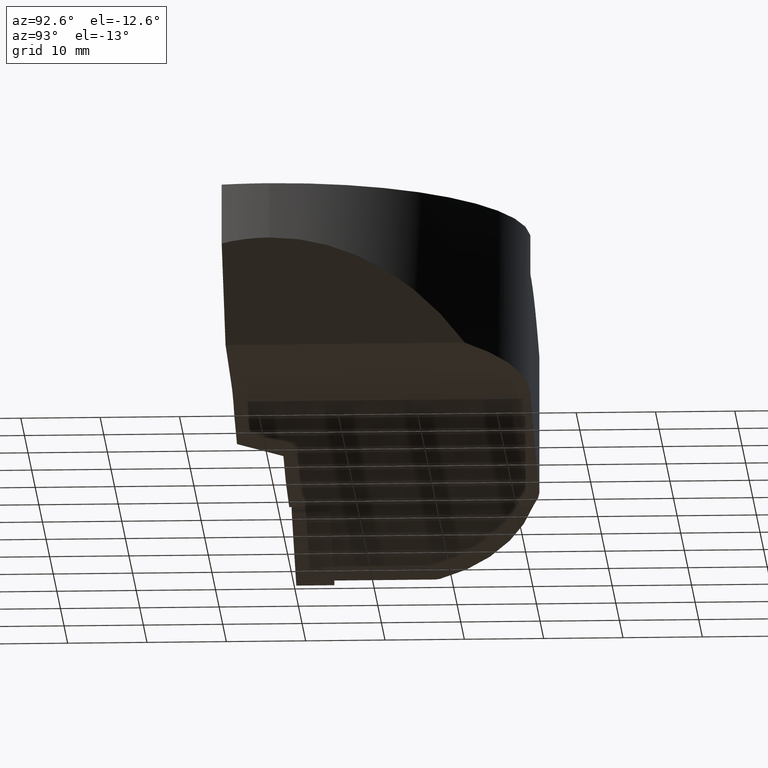
[diagram: clean part render]
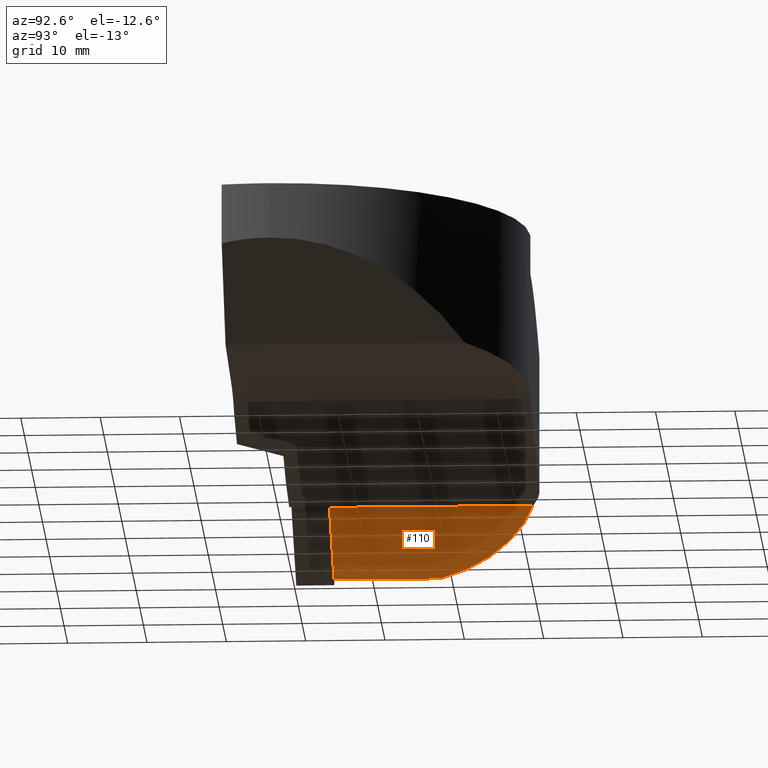
[diagram: same view with one face highlighted and labeled with its STEP entity id]
A machine part, auxiliary view. The second image highlights one B-rep face of the part: STEP entity #110.
In plain terms, the highlighted planar face has unit normal (-0.4617, 0, 0.887).
Its self-contained STEP definition (entity closure, byte-faithful):
#110=ADVANCED_FACE('',(#182),#183,.F.);
#182=FACE_OUTER_BOUND('',#326,.T.);
#183=PLANE('',#327);
#326=EDGE_LOOP('',(#618,#619,#620,#621));
#327=AXIS2_PLACEMENT_3D('',#622,#623,#624);
#618=ORIENTED_EDGE('',*,*,#652,.T.);
#619=ORIENTED_EDGE('',*,*,#702,.T.);
#620=ORIENTED_EDGE('',*,*,#706,.T.);
#621=ORIENTED_EDGE('',*,*,#718,.F.);
#622=CARTESIAN_POINT('',(-37.5782542910933,15.0913633650479,-31.1288417798675));
#623=DIRECTION('',(-0.461748613235034,7.32759435051832E-016,0.887010833178222));
#624=DIRECTION('',(0.887010833178222,6.50821117044692E-032,0.461748613235034));
#652=EDGE_CURVE('',#762,#770,#772,.T.);
#702=EDGE_CURVE('',#770,#856,#858,.T.);
#706=EDGE_CURVE('',#856,#862,#864,.T.);
#718=EDGE_CURVE('',#762,#862,#882,.T.);
#762=VERTEX_POINT('',#942);
#770=VERTEX_POINT('',#953);
#772=LINE('',#955,#956);
#856=VERTEX_POINT('',#1112);
#858=LINE('',#1121,#1122);
#862=VERTEX_POINT('',#1136);
#864=ELLIPSE('',#1138,22.5476389373269,20.0);
#882=LINE('',#1166,#1167);
#942=CARTESIAN_POINT('',(-31.2973078287873,4.76000000000001,-27.8591880053114));
#953=CARTESIAN_POINT('',(-43.8587640040882,4.76000000000001,-34.3982681971228));
#955=CARTESIAN_POINT('',(-35.2326975081103,4.76000000000001,-29.9078222034484));
#956=VECTOR('',#1219,10.0);
#1112=CARTESIAN_POINT('',(-43.8587640040882,18.1593558425802,-34.3982681971228));
#1121=CARTESIAN_POINT('',(-43.8587640040882,-0.299999999999997,-34.3982681971228));
#1122=VECTOR('',#1307,18.4593558425802);
#1136=CARTESIAN_POINT('',(-31.2973078287873,30.4827267300958,-27.8591880053114));
#1138=AXIS2_PLACEMENT_3D('',#1312,#1313,#1314);
#1166=CARTESIAN_POINT('',(-31.2973078287873,-0.299999999999994,-27.8591880053114));
#1167=VECTOR('',#1328,30.7827267300958);
#1219=DIRECTION('',(-0.887010833178222,5.96568918362001E-032,-0.461748613235034));
#1307=DIRECTION('',(0.0,1.0,0.0));
#1312=CARTESIAN_POINT('',(-25.0,11.5,-24.5810170424632));
#1313=DIRECTION('',(0.461748613235034,5.600419E-017,-0.887010833178222));
#1314=DIRECTION('',(-0.887010833178222,4.671849E-017,-0.461748613235034));
#1328=DIRECTION('',(0.0,1.0,0.0));